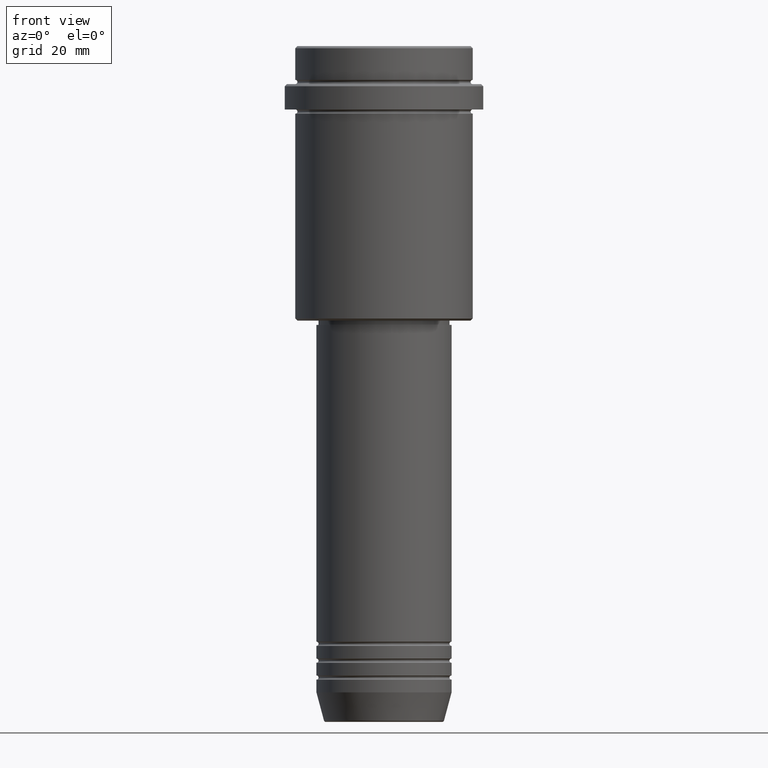
[diagram: clean part render]
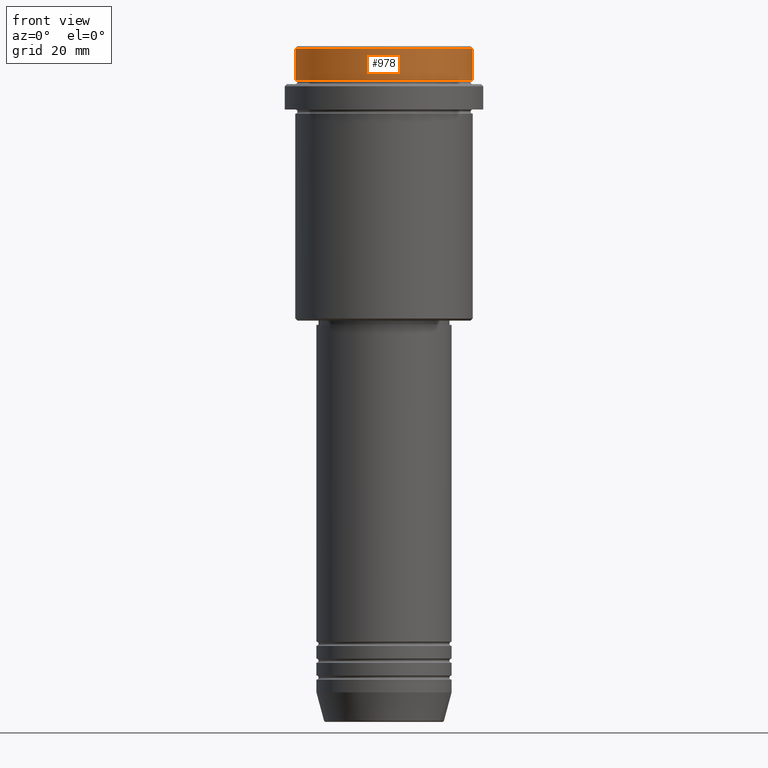
[diagram: same view with one face highlighted and labeled with its STEP entity id]
A machine part, front view. The second image highlights one B-rep face of the part: STEP entity #978.
In plain terms, the highlighted cylindrical surface (partial cylindrical patch) has radius 21 mm, axis along (-0, -0, 1).
Its self-contained STEP definition (entity closure, byte-faithful):
#26 = EDGE_CURVE ( 'NONE', #77, #544, #738, .T. ) ;
#65 = DIRECTION ( 'NONE',  ( -0.000000000000000000, -0.000000000000000000, 1.000000000000000000 ) ) ;
#75 = AXIS2_PLACEMENT_3D ( 'NONE', #316, #1272, #517 ) ;
#77 = VERTEX_POINT ( 'NONE', #955 ) ;
#89 = DIRECTION ( 'NONE',  ( -0.000000000000000000, -0.000000000000000000, 1.000000000000000000 ) ) ;
#134 = VERTEX_POINT ( 'NONE', #1188 ) ;
#255 = AXIS2_PLACEMENT_3D ( 'NONE', #521, #624, #1271 ) ;
#286 = CARTESIAN_POINT ( 'NONE',  ( 0.000000000000000000, 0.000000000000000000, 0.000000000000000000 ) ) ;
#308 = CYLINDRICAL_SURFACE ( 'NONE', #896, 21.00000000000000000 ) ;
#316 = CARTESIAN_POINT ( 'NONE',  ( 0.000000000000000000, 0.000000000000000000, -0.5000000000000386358 ) ) ;
#318 = ORIENTED_EDGE ( 'NONE', *, *, #558, .T. ) ;
#409 = CARTESIAN_POINT ( 'NONE',  ( -21.00000000000000000, 2.571758278209441661E-15, -0.5000000000000386358 ) ) ;
#451 = ORIENTED_EDGE ( 'NONE', *, *, #472, .T. ) ;
#472 = EDGE_CURVE ( 'NONE', #510, #134, #873, .T. ) ;
#510 = VERTEX_POINT ( 'NONE', #536 ) ;
#517 = DIRECTION ( 'NONE',  ( 1.000000000000000000, 0.000000000000000000, 0.000000000000000000 ) ) ;
#521 = CARTESIAN_POINT ( 'NONE',  ( 0.000000000000000000, 0.000000000000000000, -7.999999999999998224 ) ) ;
#536 = CARTESIAN_POINT ( 'NONE',  ( -21.00000000000000000, 2.571758278209441661E-15, -7.999999999999998224 ) ) ;
#544 = VERTEX_POINT ( 'NONE', #409 ) ;
#558 = EDGE_CURVE ( 'NONE', #134, #77, #839, .T. ) ;
#591 = LINE ( 'NONE', #597, #1119 ) ;
#597 = CARTESIAN_POINT ( 'NONE',  ( -21.00000000000000000, 2.571758278209441661E-15, 0.000000000000000000 ) ) ;
#624 = DIRECTION ( 'NONE',  ( -0.000000000000000000, -0.000000000000000000, 1.000000000000000000 ) ) ;
#738 = CIRCLE ( 'NONE', #75, 21.00000000000000000 ) ;
#838 = DIRECTION ( 'NONE',  ( 1.000000000000000000, 0.000000000000000000, 0.000000000000000000 ) ) ;
#839 = LINE ( 'NONE', #1276, #1260 ) ;
#863 = EDGE_CURVE ( 'NONE', #510, #544, #591, .T. ) ;
#873 = CIRCLE ( 'NONE', #255, 21.00000000000000000 ) ;
#896 = AXIS2_PLACEMENT_3D ( 'NONE', #286, #1049, #838 ) ;
#955 = CARTESIAN_POINT ( 'NONE',  ( 21.00000000000000000, 0.000000000000000000, -0.5000000000000386358 ) ) ;
#978 = ADVANCED_FACE ( 'NONE', ( #1376 ), #308, .T. ) ;
#1000 = EDGE_LOOP ( 'NONE', ( #1136, #451, #318, #1016 ) ) ;
#1016 = ORIENTED_EDGE ( 'NONE', *, *, #26, .T. ) ;
#1049 = DIRECTION ( 'NONE',  ( -0.000000000000000000, -0.000000000000000000, 1.000000000000000000 ) ) ;
#1119 = VECTOR ( 'NONE', #65, 1000.000000000000000 ) ;
#1136 = ORIENTED_EDGE ( 'NONE', *, *, #863, .F. ) ;
#1188 = CARTESIAN_POINT ( 'NONE',  ( 21.00000000000000000, 0.000000000000000000, -7.999999999999998224 ) ) ;
#1260 = VECTOR ( 'NONE', #89, 1000.000000000000000 ) ;
#1271 = DIRECTION ( 'NONE',  ( 1.000000000000000000, 0.000000000000000000, 0.000000000000000000 ) ) ;
#1272 = DIRECTION ( 'NONE',  ( 0.000000000000000000, 0.000000000000000000, -1.000000000000000000 ) ) ;
#1276 = CARTESIAN_POINT ( 'NONE',  ( 21.00000000000000000, 0.000000000000000000, 0.000000000000000000 ) ) ;
#1376 = FACE_OUTER_BOUND ( 'NONE', #1000, .T. ) ;